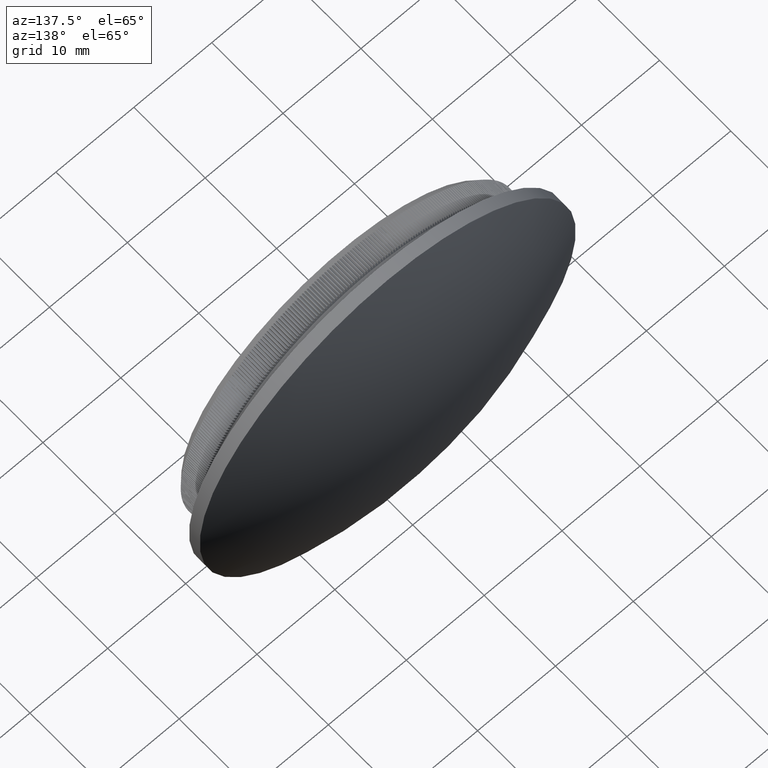
[diagram: clean part render]
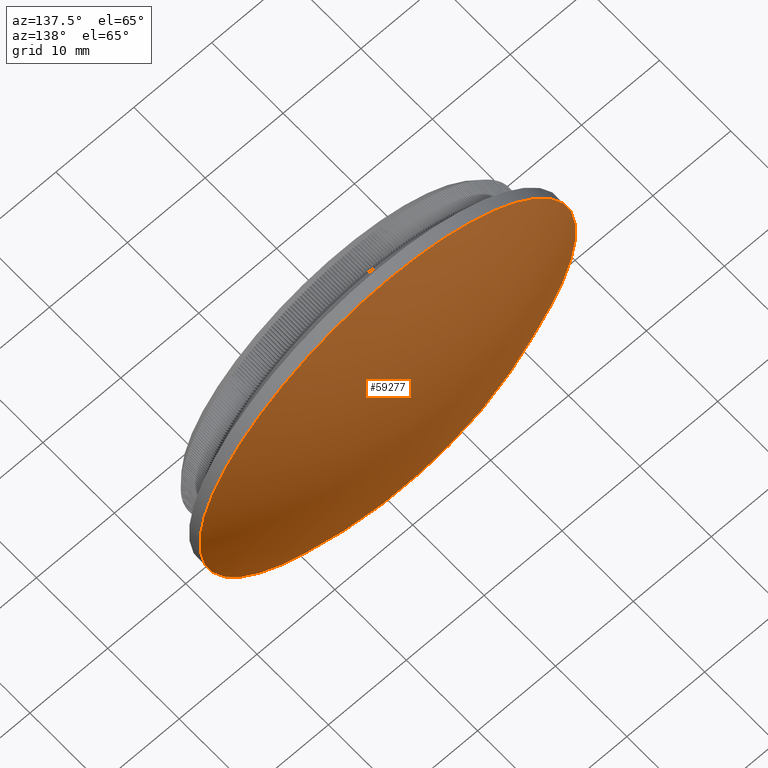
[diagram: same view with one face highlighted and labeled with its STEP entity id]
A machine part, auxiliary view. The second image highlights one B-rep face of the part: STEP entity #59277.
In plain terms, the highlighted spherical surface has radius 55.7702 mm.
Its self-contained STEP definition (entity closure, byte-faithful):
#1129 = AXIS2_PLACEMENT_3D ( 'NONE', #13629, #9490, #58824 ) ;
#9490 = DIRECTION ( 'NONE',  ( 0.000000000000000000, 0.000000000000000000, 1.000000000000000000 ) ) ;
#13167 = CIRCLE ( 'NONE', #24487, 24.14999999999999858 ) ;
#13629 = CARTESIAN_POINT ( 'NONE',  ( 0.000000000000000000, -43.77022727272735381, 0.000000000000000000 ) ) ;
#18692 = SPHERICAL_SURFACE ( 'NONE', #1129, 55.77022727272735381 ) ;
#24487 = AXIS2_PLACEMENT_3D ( 'NONE', #46691, #36652, #41490 ) ;
#31097 = FACE_OUTER_BOUND ( 'NONE', #46856, .T. ) ;
#36652 = DIRECTION ( 'NONE',  ( -0.000000000000000000, -1.000000000000000000, -0.000000000000000000 ) ) ;
#41490 = DIRECTION ( 'NONE',  ( 0.000000000000000000, 0.000000000000000000, -1.000000000000000000 ) ) ;
#44565 = EDGE_CURVE ( 'NONE', #60414, #60414, #13167, .T. ) ;
#44895 = ORIENTED_EDGE ( 'NONE', *, *, #44565, .F. ) ;
#46691 = CARTESIAN_POINT ( 'NONE',  ( 0.000000000000000000, 6.500000000000005329, 0.000000000000000000 ) ) ;
#46856 = EDGE_LOOP ( 'NONE', ( #44895 ) ) ;
#58824 = DIRECTION ( 'NONE',  ( 1.000000000000000000, 0.000000000000000000, 0.000000000000000000 ) ) ;
#59277 = ADVANCED_FACE ( 'NONE', ( #31097 ), #18692, .T. ) ;
#60414 = VERTEX_POINT ( 'NONE', #61279 ) ;
#61279 = CARTESIAN_POINT ( 'NONE',  ( 0.000000000000000000, 6.500000000000005329, -24.14999999999999858 ) ) ;